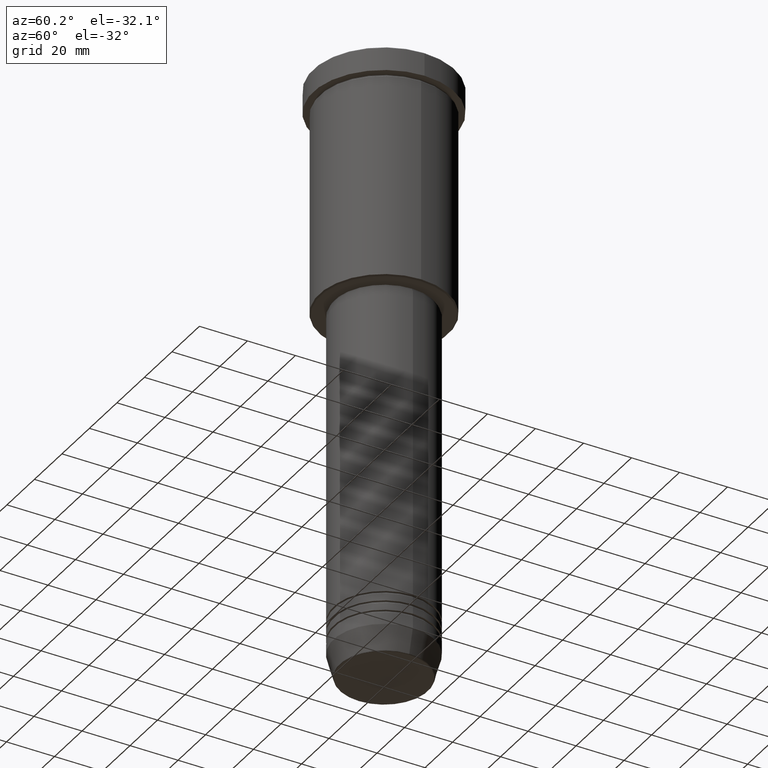
[diagram: clean part render]
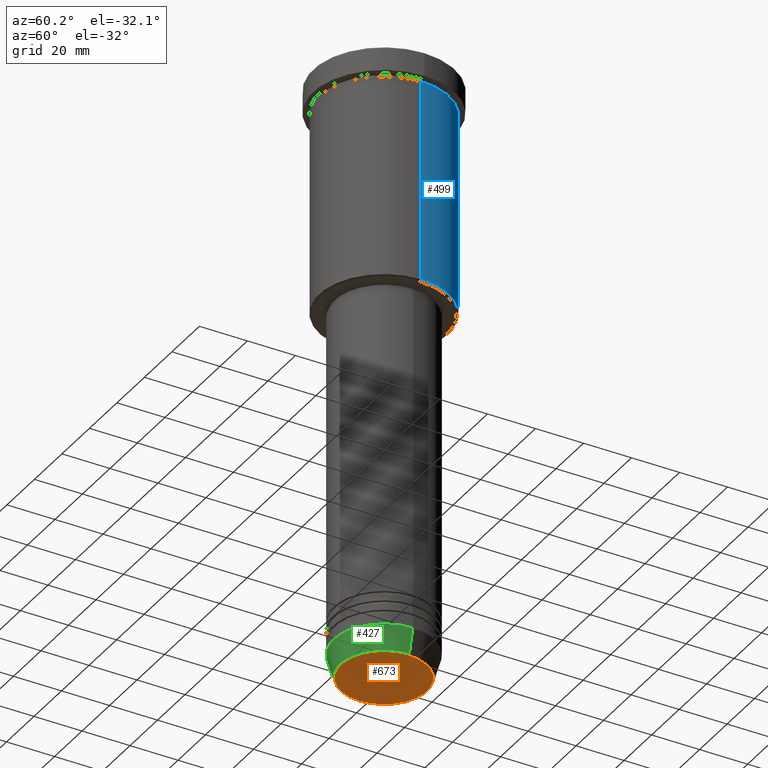
[diagram: same view with three faces highlighted in distinct colors, each labeled with its STEP entity id]
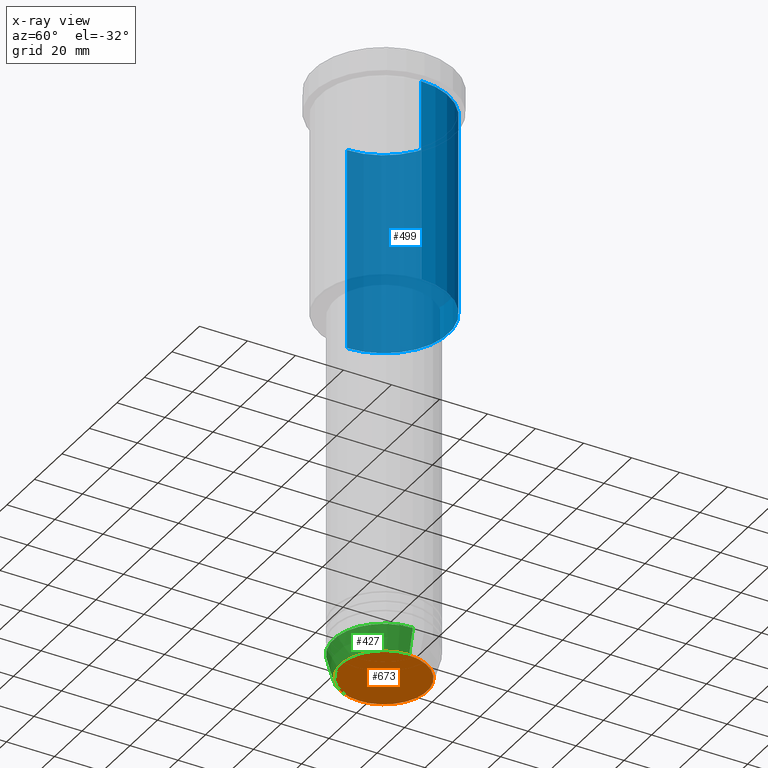
[diagram: x-ray of the same camera — body ghosted, the three highlighted faces saturated]
A machine part, auxiliary view with three faces highlighted in distinct colors.
The next image is the same camera in x-ray (body ghosted, the three faces saturated) — at least one of them is partly hidden behind the body in this view.
Their STEP definitions:

[orange] entity #673 — the highlighted planar face has unit normal (0, -0, 1).
#9 = PLANE ( 'NONE',  #712 ) ;
#61 = CARTESIAN_POINT ( 'NONE',  ( 0.000000000000000000, 0.000000000000000000, -251.0000000000000000 ) ) ;
#88 = DIRECTION ( 'NONE',  ( 1.000000000000000000, 0.000000000000000000, 0.000000000000000000 ) ) ;
#100 = CARTESIAN_POINT ( 'NONE',  ( 0.000000000000000000, 0.000000000000000000, -251.0000000000000000 ) ) ;
#102 = AXIS2_PLACEMENT_3D ( 'NONE', #517, #887, #88 ) ;
#130 = EDGE_LOOP ( 'NONE', ( #362, #174 ) ) ;
#144 = AXIS2_PLACEMENT_3D ( 'NONE', #61, #698, #328 ) ;
#174 = ORIENTED_EDGE ( 'NONE', *, *, #1114, .T. ) ;
#328 = DIRECTION ( 'NONE',  ( 1.000000000000000000, 0.000000000000000000, 0.000000000000000000 ) ) ;
#362 = ORIENTED_EDGE ( 'NONE', *, *, #986, .T. ) ;
#517 = CARTESIAN_POINT ( 'NONE',  ( 0.000000000000000000, 0.000000000000000000, -251.0000000000000000 ) ) ;
#549 = VERTEX_POINT ( 'NONE', #598 ) ;
#553 = DIRECTION ( 'NONE',  ( 0.000000000000000000, -0.000000000000000000, 1.000000000000000000 ) ) ;
#561 = FACE_OUTER_BOUND ( 'NONE', #130, .T. ) ;
#570 = VERTEX_POINT ( 'NONE', #798 ) ;
#598 = CARTESIAN_POINT ( 'NONE',  ( 17.93684458169929030, 0.000000000000000000, -251.0000000000000000 ) ) ;
#673 = ADVANCED_FACE ( 'NONE', ( #561 ), #9, .F. ) ;
#698 = DIRECTION ( 'NONE',  ( 0.000000000000000000, 0.000000000000000000, -1.000000000000000000 ) ) ;
#712 = AXIS2_PLACEMENT_3D ( 'NONE', #100, #553, #911 ) ;
#798 = CARTESIAN_POINT ( 'NONE',  ( -17.93684458169929030, 2.226202879662625134E-15, -251.0000000000000000 ) ) ;
#846 = CIRCLE ( 'NONE', #144, 17.93684458169929030 ) ;
#887 = DIRECTION ( 'NONE',  ( 0.000000000000000000, 0.000000000000000000, -1.000000000000000000 ) ) ;
#911 = DIRECTION ( 'NONE',  ( 1.000000000000000000, 0.000000000000000000, 0.000000000000000000 ) ) ;
#959 = CIRCLE ( 'NONE', #102, 17.93684458169929030 ) ;
#986 = EDGE_CURVE ( 'NONE', #549, #570, #846, .T. ) ;
#1114 = EDGE_CURVE ( 'NONE', #570, #549, #959, .T. ) ;

[blue] entity #499 — the highlighted cylindrical surface (partial cylindrical patch) has radius 27 mm, axis along (-0, -0, 1).
#48 = FACE_OUTER_BOUND ( 'NONE', #847, .T. ) ;
#82 = LINE ( 'NONE', #815, #939 ) ;
#96 = DIRECTION ( 'NONE',  ( -0.000000000000000000, -0.000000000000000000, 1.000000000000000000 ) ) ;
#113 = CARTESIAN_POINT ( 'NONE',  ( -27.00000000000000355, 3.306546357697854128E-15, 0.000000000000000000 ) ) ;
#127 = ORIENTED_EDGE ( 'NONE', *, *, #956, .F. ) ;
#142 = CARTESIAN_POINT ( 'NONE',  ( 0.000000000000000000, 0.000000000000000000, -10.99999999999999289 ) ) ;
#163 = CARTESIAN_POINT ( 'NONE',  ( 27.00000000000000355, 0.000000000000000000, -95.49999999999995737 ) ) ;
#200 = CIRCLE ( 'NONE', #651, 27.00000000000000355 ) ;
#214 = VERTEX_POINT ( 'NONE', #701 ) ;
#268 = EDGE_CURVE ( 'NONE', #608, #321, #998, .T. ) ;
#283 = DIRECTION ( 'NONE',  ( -1.000000000000000000, 0.000000000000000000, 0.000000000000000000 ) ) ;
#289 = AXIS2_PLACEMENT_3D ( 'NONE', #366, #820, #283 ) ;
#309 = EDGE_CURVE ( 'NONE', #321, #565, #1097, .T. ) ;
#321 = VERTEX_POINT ( 'NONE', #645 ) ;
#322 = DIRECTION ( 'NONE',  ( -0.000000000000000000, -0.000000000000000000, 1.000000000000000000 ) ) ;
#366 = CARTESIAN_POINT ( 'NONE',  ( 0.000000000000000000, 0.000000000000000000, -95.49999999999995737 ) ) ;
#402 = ORIENTED_EDGE ( 'NONE', *, *, #309, .T. ) ;
#478 = AXIS2_PLACEMENT_3D ( 'NONE', #581, #656, #948 ) ;
#499 = ADVANCED_FACE ( 'NONE', ( #48 ), #1143, .T. ) ;
#525 = CARTESIAN_POINT ( 'NONE',  ( -27.00000000000000355, 3.306546357697854128E-15, -10.99999999999999289 ) ) ;
#538 = ORIENTED_EDGE ( 'NONE', *, *, #644, .F. ) ;
#565 = VERTEX_POINT ( 'NONE', #525 ) ;
#581 = CARTESIAN_POINT ( 'NONE',  ( 0.000000000000000000, 0.000000000000000000, 0.000000000000000000 ) ) ;
#608 = VERTEX_POINT ( 'NONE', #163 ) ;
#616 = ORIENTED_EDGE ( 'NONE', *, *, #268, .T. ) ;
#644 = EDGE_CURVE ( 'NONE', #608, #214, #82, .T. ) ;
#645 = CARTESIAN_POINT ( 'NONE',  ( -27.00000000000000355, 3.306546357697854128E-15, -95.49999999999995737 ) ) ;
#651 = AXIS2_PLACEMENT_3D ( 'NONE', #142, #746, #849 ) ;
#656 = DIRECTION ( 'NONE',  ( -0.000000000000000000, -0.000000000000000000, 1.000000000000000000 ) ) ;
#701 = CARTESIAN_POINT ( 'NONE',  ( 27.00000000000000355, 0.000000000000000000, -10.99999999999999289 ) ) ;
#746 = DIRECTION ( 'NONE',  ( -0.000000000000000000, -0.000000000000000000, 1.000000000000000000 ) ) ;
#768 = VECTOR ( 'NONE', #96, 1000.000000000000000 ) ;
#815 = CARTESIAN_POINT ( 'NONE',  ( 27.00000000000000355, 0.000000000000000000, 0.000000000000000000 ) ) ;
#820 = DIRECTION ( 'NONE',  ( -0.000000000000000000, -0.000000000000000000, 1.000000000000000000 ) ) ;
#847 = EDGE_LOOP ( 'NONE', ( #616, #402, #127, #538 ) ) ;
#849 = DIRECTION ( 'NONE',  ( 1.000000000000000000, 0.000000000000000000, 0.000000000000000000 ) ) ;
#939 = VECTOR ( 'NONE', #322, 1000.000000000000000 ) ;
#948 = DIRECTION ( 'NONE',  ( 1.000000000000000000, 0.000000000000000000, 0.000000000000000000 ) ) ;
#956 = EDGE_CURVE ( 'NONE', #214, #565, #200, .T. ) ;
#998 = CIRCLE ( 'NONE', #289, 27.00000000000000355 ) ;
#1097 = LINE ( 'NONE', #113, #768 ) ;
#1143 = CYLINDRICAL_SURFACE ( 'NONE', #478, 27.00000000000000355 ) ;

[green] entity #427 — the highlighted conical surface has half-angle 15 deg.
#80 = EDGE_CURVE ( 'NONE', #470, #1121, #477, .T. ) ;
#111 = CARTESIAN_POINT ( 'NONE',  ( 0.000000000000000000, 0.000000000000000000, -241.0000000000000000 ) ) ;
#117 = FACE_OUTER_BOUND ( 'NONE', #223, .T. ) ;
#223 = EDGE_LOOP ( 'NONE', ( #763, #270, #935, #331 ) ) ;
#250 = VECTOR ( 'NONE', #360, 1000.000000000000114 ) ;
#270 = ORIENTED_EDGE ( 'NONE', *, *, #80, .T. ) ;
#331 = ORIENTED_EDGE ( 'NONE', *, *, #783, .F. ) ;
#346 = VERTEX_POINT ( 'NONE', #1113 ) ;
#360 = DIRECTION ( 'NONE',  ( 0.2588190451025211836, 0.000000000000000000, 0.9659258262890680902 ) ) ;
#361 = EDGE_CURVE ( 'NONE', #1121, #628, #450, .T. ) ;
#413 = DIRECTION ( 'NONE',  ( -0.000000000000000000, -0.000000000000000000, 1.000000000000000000 ) ) ;
#427 = ADVANCED_FACE ( 'NONE', ( #117 ), #1093, .T. ) ;
#450 = LINE ( 'NONE', #1182, #250 ) ;
#455 = CARTESIAN_POINT ( 'NONE',  ( 18.41980749484383040, 0.000000000000000000, -250.6294095225512422 ) ) ;
#469 = DIRECTION ( 'NONE',  ( -0.000000000000000000, -0.000000000000000000, 1.000000000000000000 ) ) ;
#470 = VERTEX_POINT ( 'NONE', #942 ) ;
#475 = CARTESIAN_POINT ( 'NONE',  ( 0.000000000000000000, 0.000000000000000000, -241.0000000000000000 ) ) ;
#477 = CIRCLE ( 'NONE', #611, 18.41980749484383040 ) ;
#511 = LINE ( 'NONE', #881, #866 ) ;
#531 = CARTESIAN_POINT ( 'NONE',  ( 21.00000000000000000, 0.000000000000000000, -241.0000000000000000 ) ) ;
#576 = CIRCLE ( 'NONE', #669, 21.00000000000000000 ) ;
#582 = DIRECTION ( 'NONE',  ( 1.000000000000000000, 0.000000000000000000, 0.000000000000000000 ) ) ;
#611 = AXIS2_PLACEMENT_3D ( 'NONE', #1036, #1045, #582 ) ;
#628 = VERTEX_POINT ( 'NONE', #531 ) ;
#669 = AXIS2_PLACEMENT_3D ( 'NONE', #111, #469, #1096 ) ;
#763 = ORIENTED_EDGE ( 'NONE', *, *, #1104, .F. ) ;
#783 = EDGE_CURVE ( 'NONE', #346, #628, #576, .T. ) ;
#830 = AXIS2_PLACEMENT_3D ( 'NONE', #475, #413, #845 ) ;
#845 = DIRECTION ( 'NONE',  ( 1.000000000000000000, 0.000000000000000000, 0.000000000000000000 ) ) ;
#866 = VECTOR ( 'NONE', #976, 1000.000000000000114 ) ;
#881 = CARTESIAN_POINT ( 'NONE',  ( -21.00000000000000000, 2.571758278209441661E-15, -241.0000000000000000 ) ) ;
#935 = ORIENTED_EDGE ( 'NONE', *, *, #361, .T. ) ;
#942 = CARTESIAN_POINT ( 'NONE',  ( -18.41980749484383040, 2.413767053578266669E-15, -250.6294095225512422 ) ) ;
#976 = DIRECTION ( 'NONE',  ( -0.2588190451025211836, 3.169619151431770488E-17, 0.9659258262890680902 ) ) ;
#1036 = CARTESIAN_POINT ( 'NONE',  ( 0.000000000000000000, 0.000000000000000000, -250.6294095225512422 ) ) ;
#1045 = DIRECTION ( 'NONE',  ( -0.000000000000000000, -0.000000000000000000, 1.000000000000000000 ) ) ;
#1093 = CONICAL_SURFACE ( 'NONE', #830, 21.00000000000000000, 0.2617993877991499074 ) ;
#1096 = DIRECTION ( 'NONE',  ( 1.000000000000000000, 0.000000000000000000, 0.000000000000000000 ) ) ;
#1104 = EDGE_CURVE ( 'NONE', #470, #346, #511, .T. ) ;
#1113 = CARTESIAN_POINT ( 'NONE',  ( -21.00000000000000000, 2.571758278209441661E-15, -241.0000000000000000 ) ) ;
#1121 = VERTEX_POINT ( 'NONE', #455 ) ;
#1182 = CARTESIAN_POINT ( 'NONE',  ( 21.00000000000000000, 0.000000000000000000, -241.0000000000000000 ) ) ;